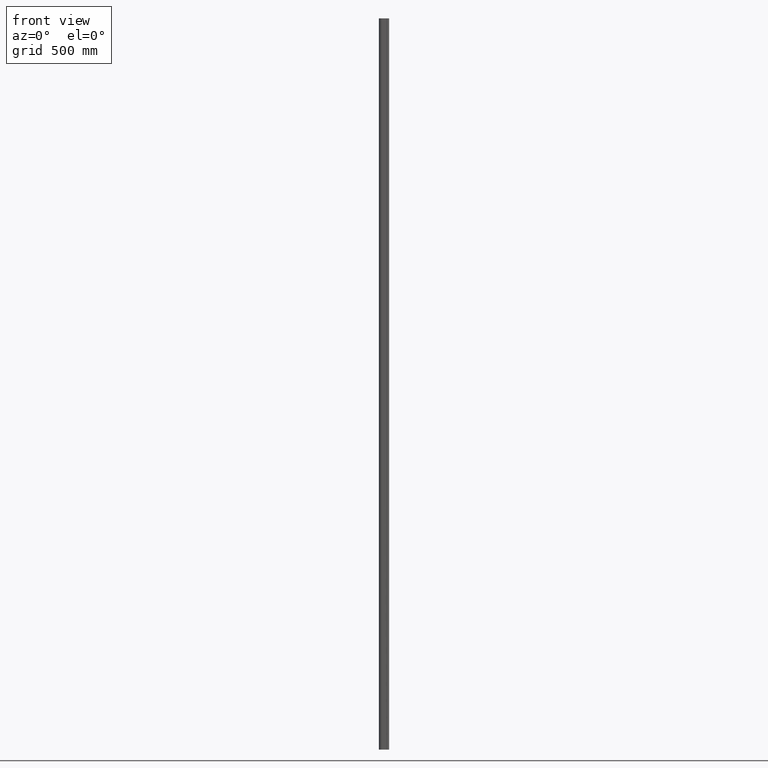
[diagram: clean part render]
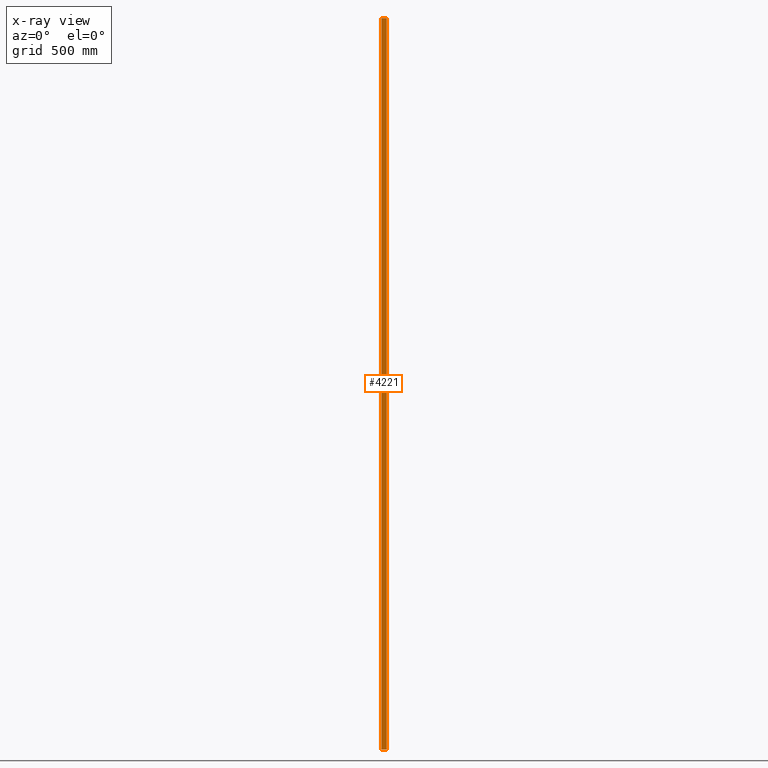
[diagram: x-ray — body ghosted, one internal face saturated and labeled with its STEP entity id]
A machine part, front view, then the same camera in x-ray: the body is ghosted and one INTERNAL B-rep face — a face not visible from any outside direction — is saturated and labeled: STEP entity #4221.
In plain terms, the highlighted planar face has unit normal (0, -1, 0).
Its self-contained STEP definition (entity closure, byte-faithful):
#158 = CARTESIAN_POINT ( 'NONE',  ( -11.49999999999999822, 24.70787098304328566, 1500.000000000000000 ) ) ;
#517 = VECTOR ( 'NONE', #16518, 1000.000000000000000 ) ;
#1173 = LINE ( 'NONE', #15144, #517 ) ;
#1190 = EDGE_CURVE ( 'NONE', #15977, #10845, #1857, .T. ) ;
#1857 = LINE ( 'NONE', #3810, #13682 ) ;
#2607 = LINE ( 'NONE', #7666, #10560 ) ;
#2784 = LINE ( 'NONE', #12173, #17850 ) ;
#3484 = ORIENTED_EDGE ( 'NONE', *, *, #9847, .T. ) ;
#3585 = ORIENTED_EDGE ( 'NONE', *, *, #16208, .T. ) ;
#3810 = CARTESIAN_POINT ( 'NONE',  ( -11.49999999999999822, 24.70787098304328566, -1500.000000000000000 ) ) ;
#4221 = ADVANCED_FACE ( 'NONE', ( #6124 ), #6119, .F. ) ;
#4349 = ORIENTED_EDGE ( 'NONE', *, *, #1190, .F. ) ;
#5202 = CARTESIAN_POINT ( 'NONE',  ( -11.49999999999999822, 24.70787098304328566, -1500.000000000000000 ) ) ;
#5507 = VERTEX_POINT ( 'NONE', #158 ) ;
#5989 = CARTESIAN_POINT ( 'NONE',  ( -11.49999999999999822, 24.70787098304328566, -1500.000000000000000 ) ) ;
#6119 = PLANE ( 'NONE',  #12763 ) ;
#6124 = FACE_OUTER_BOUND ( 'NONE', #16359, .T. ) ;
#6305 = CARTESIAN_POINT ( 'NONE',  ( 11.50000000000000178, 24.70787098304328566, 1500.000000000000000 ) ) ;
#6573 = DIRECTION ( 'NONE',  ( 0.000000000000000000, 0.000000000000000000, 1.000000000000000000 ) ) ;
#7548 = DIRECTION ( 'NONE',  ( 0.000000000000000000, -1.000000000000000000, 0.000000000000000000 ) ) ;
#7666 = CARTESIAN_POINT ( 'NONE',  ( 11.50000000000000178, 24.70787098304328566, -1500.000000000000000 ) ) ;
#7725 = DIRECTION ( 'NONE',  ( 0.000000000000000000, 0.000000000000000000, 1.000000000000000000 ) ) ;
#8014 = DIRECTION ( 'NONE',  ( 1.000000000000000000, 0.000000000000000000, 0.000000000000000000 ) ) ;
#8477 = ORIENTED_EDGE ( 'NONE', *, *, #12742, .F. ) ;
#8963 = VERTEX_POINT ( 'NONE', #6305 ) ;
#9847 = EDGE_CURVE ( 'NONE', #5507, #8963, #1173, .T. ) ;
#10560 = VECTOR ( 'NONE', #7725, 1000.000000000000000 ) ;
#10845 = VERTEX_POINT ( 'NONE', #16229 ) ;
#12173 = CARTESIAN_POINT ( 'NONE',  ( -11.49999999999999822, 24.70787098304328566, -1500.000000000000000 ) ) ;
#12742 = EDGE_CURVE ( 'NONE', #10845, #8963, #2607, .T. ) ;
#12763 = AXIS2_PLACEMENT_3D ( 'NONE', #5202, #7548, #15729 ) ;
#13682 = VECTOR ( 'NONE', #8014, 1000.000000000000000 ) ;
#15144 = CARTESIAN_POINT ( 'NONE',  ( -11.49999999999999822, 24.70787098304328566, 1500.000000000000000 ) ) ;
#15729 = DIRECTION ( 'NONE',  ( 0.000000000000000000, -0.000000000000000000, -1.000000000000000000 ) ) ;
#15977 = VERTEX_POINT ( 'NONE', #5989 ) ;
#16208 = EDGE_CURVE ( 'NONE', #15977, #5507, #2784, .T. ) ;
#16229 = CARTESIAN_POINT ( 'NONE',  ( 11.50000000000000178, 24.70787098304328566, -1500.000000000000000 ) ) ;
#16359 = EDGE_LOOP ( 'NONE', ( #3484, #8477, #4349, #3585 ) ) ;
#16518 = DIRECTION ( 'NONE',  ( 1.000000000000000000, 0.000000000000000000, 0.000000000000000000 ) ) ;
#17850 = VECTOR ( 'NONE', #6573, 1000.000000000000000 ) ;